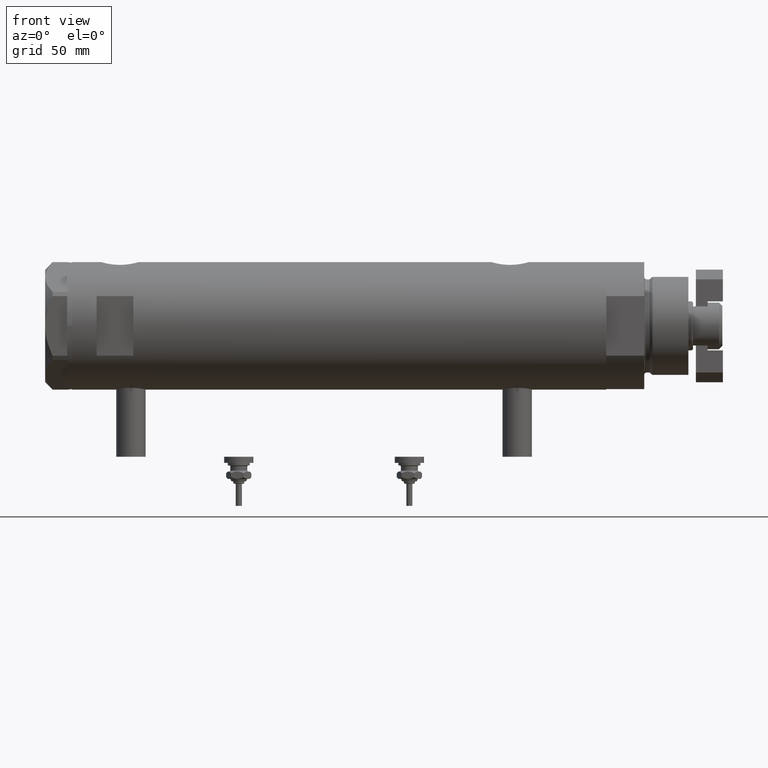
[diagram: clean part render]
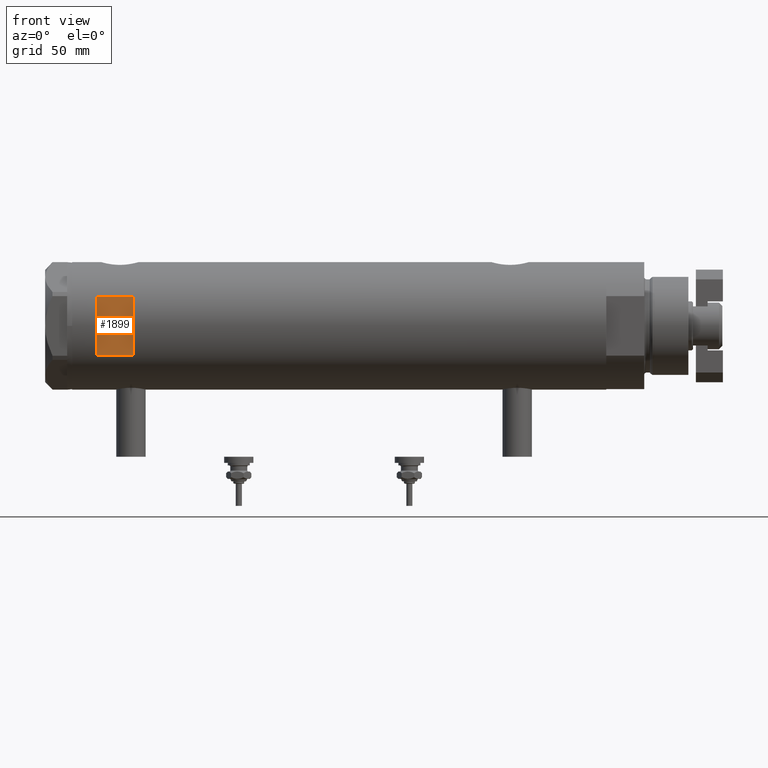
[diagram: same view with one face highlighted and labeled with its STEP entity id]
A machine part, front view. The second image highlights one B-rep face of the part: STEP entity #1899.
In plain terms, the highlighted planar face has unit normal (-0, 1, 0).
Its self-contained STEP definition (entity closure, byte-faithful):
#126 = VECTOR ( 'NONE', #3446, 1000.000000000000000 ) ;
#459 = CARTESIAN_POINT ( 'NONE',  ( -26.00000000000000355, -23.00000000000000355, 98.95000000000001705 ) ) ;
#465 = VECTOR ( 'NONE', #3061, 1000.000000000000000 ) ;
#907 = LINE ( 'NONE', #981, #465 ) ;
#912 = VECTOR ( 'NONE', #1900, 1000.000000000000000 ) ;
#916 = EDGE_CURVE ( 'NONE', #3219, #5779, #4007, .T. ) ;
#981 = CARTESIAN_POINT ( 'NONE',  ( -26.00000000000000355, -23.00000000000000355, 98.95000000000001705 ) ) ;
#1244 = CARTESIAN_POINT ( 'NONE',  ( -12.12435565298214080, -23.00000000000000355, 83.95000000000001705 ) ) ;
#1792 = DIRECTION ( 'NONE',  ( 1.000000000000000000, -0.000000000000000000, -0.000000000000000000 ) ) ;
#1899 = ADVANCED_FACE ( 'NONE', ( #5930 ), #3735, .F. ) ;
#1900 = DIRECTION ( 'NONE',  ( 0.000000000000000000, 0.000000000000000000, 1.000000000000000000 ) ) ;
#2066 = ORIENTED_EDGE ( 'NONE', *, *, #5054, .F. ) ;
#2105 = EDGE_LOOP ( 'NONE', ( #4584, #3574, #3343, #2066 ) ) ;
#3061 = DIRECTION ( 'NONE',  ( 1.000000000000000000, -0.000000000000000000, -0.000000000000000000 ) ) ;
#3219 = VERTEX_POINT ( 'NONE', #1244 ) ;
#3343 = ORIENTED_EDGE ( 'NONE', *, *, #4571, .T. ) ;
#3446 = DIRECTION ( 'NONE',  ( -0.000000000000000000, -0.000000000000000000, -1.000000000000000000 ) ) ;
#3574 = ORIENTED_EDGE ( 'NONE', *, *, #916, .T. ) ;
#3735 = PLANE ( 'NONE',  #5302 ) ;
#4007 = LINE ( 'NONE', #6267, #5407 ) ;
#4028 = CARTESIAN_POINT ( 'NONE',  ( 12.12435565298214080, -23.00000000000000355, 83.95000000000001705 ) ) ;
#4521 = LINE ( 'NONE', #4657, #126 ) ;
#4537 = VERTEX_POINT ( 'NONE', #5693 ) ;
#4571 = EDGE_CURVE ( 'NONE', #5779, #4537, #4622, .T. ) ;
#4584 = ORIENTED_EDGE ( 'NONE', *, *, #6156, .T. ) ;
#4622 = LINE ( 'NONE', #6792, #912 ) ;
#4657 = CARTESIAN_POINT ( 'NONE',  ( -12.12435565298214080, -23.00000000000000355, -108.9500000000000028 ) ) ;
#4681 = CARTESIAN_POINT ( 'NONE',  ( -12.12435565298214080, -23.00000000000000355, 98.95000000000001705 ) ) ;
#4814 = DIRECTION ( 'NONE',  ( 0.000000000000000000, 1.000000000000000000, 0.000000000000000000 ) ) ;
#5020 = VERTEX_POINT ( 'NONE', #4681 ) ;
#5054 = EDGE_CURVE ( 'NONE', #5020, #4537, #907, .T. ) ;
#5302 = AXIS2_PLACEMENT_3D ( 'NONE', #459, #4814, #6991 ) ;
#5407 = VECTOR ( 'NONE', #1792, 1000.000000000000000 ) ;
#5693 = CARTESIAN_POINT ( 'NONE',  ( 12.12435565298214080, -23.00000000000000355, 98.95000000000001705 ) ) ;
#5779 = VERTEX_POINT ( 'NONE', #4028 ) ;
#5930 = FACE_OUTER_BOUND ( 'NONE', #2105, .T. ) ;
#6156 = EDGE_CURVE ( 'NONE', #5020, #3219, #4521, .T. ) ;
#6267 = CARTESIAN_POINT ( 'NONE',  ( -26.00000000000000355, -23.00000000000000355, 83.95000000000003126 ) ) ;
#6792 = CARTESIAN_POINT ( 'NONE',  ( 12.12435565298214080, -23.00000000000000355, -108.9500000000000028 ) ) ;
#6991 = DIRECTION ( 'NONE',  ( 0.000000000000000000, -0.000000000000000000, 1.000000000000000000 ) ) ;